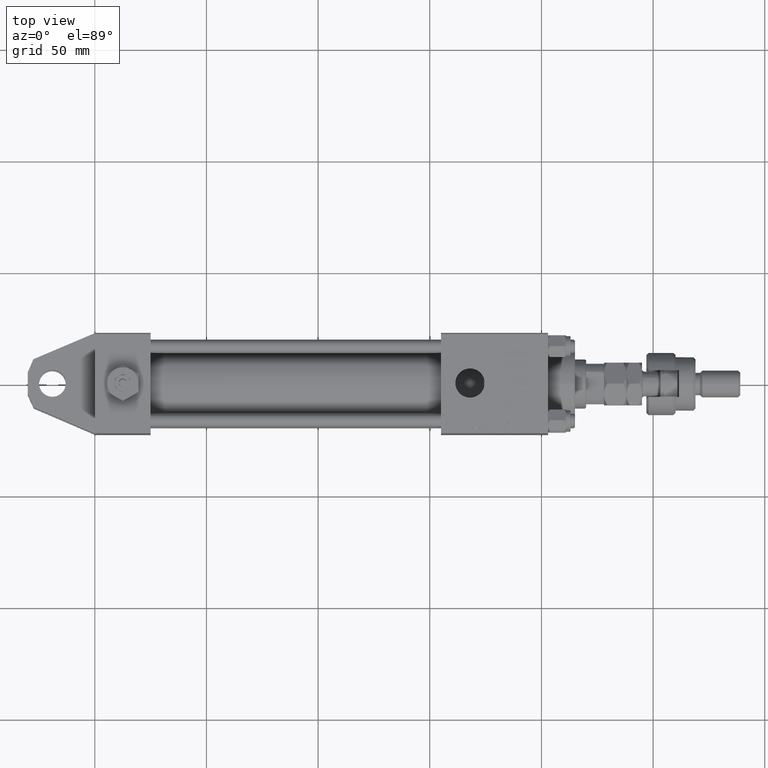
[diagram: clean part render]
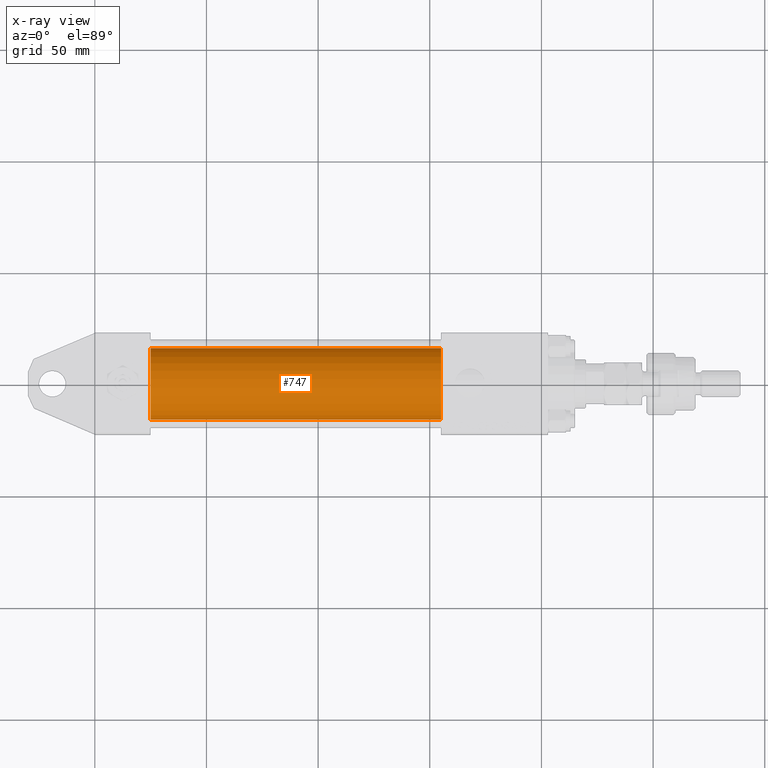
[diagram: x-ray — body ghosted, one internal face saturated and labeled with its STEP entity id]
A machine part, top view, then the same camera in x-ray: the body is ghosted and one INTERNAL B-rep face — a face not visible from any outside direction — is saturated and labeled: STEP entity #747.
In plain terms, the highlighted cylindrical surface (edge-blend (fillet) strip) has radius 16 mm, axis along (-1, -0, 0).
Its self-contained STEP definition (entity closure, byte-faithful):
#747 = ADVANCED_FACE ( 'NONE', ( #49355 ), #43848, .F. ) ;
#1369 = EDGE_CURVE ( 'NONE', #4192, #42297, #32931, .T. ) ;
#4192 = VERTEX_POINT ( 'NONE', #40521 ) ;
#6098 = DIRECTION ( 'NONE',  ( 0.000000000000000000, 0.000000000000000000, 1.000000000000000000 ) ) ;
#6796 = EDGE_CURVE ( 'NONE', #42798, #4192, #16309, .T. ) ;
#7087 = EDGE_LOOP ( 'NONE', ( #28536, #47417, #24578, #47312 ) ) ;
#8490 = CARTESIAN_POINT ( 'NONE',  ( 155.0000000000000000, -3.469446951953614189E-15, 0.000000000000000000 ) ) ;
#8756 = DIRECTION ( 'NONE',  ( 1.000000000000000000, 0.000000000000000000, 0.000000000000000000 ) ) ;
#9394 = DIRECTION ( 'NONE',  ( -1.000000000000000000, -0.000000000000000000, -0.000000000000000000 ) ) ;
#15419 = VERTEX_POINT ( 'NONE', #39794 ) ;
#16309 = CIRCLE ( 'NONE', #52394, 16.00000000000000000 ) ;
#17105 = DIRECTION ( 'NONE',  ( 0.000000000000000000, 0.000000000000000000, -1.000000000000000000 ) ) ;
#22890 = LINE ( 'NONE', #23162, #24712 ) ;
#23162 = CARTESIAN_POINT ( 'NONE',  ( 155.0000000000000000, -3.469446951953614189E-15, 16.00000000000000000 ) ) ;
#23449 = CARTESIAN_POINT ( 'NONE',  ( 155.0000000000000000, -3.469446951953614189E-15, 0.000000000000000000 ) ) ;
#24578 = ORIENTED_EDGE ( 'NONE', *, *, #35713, .F. ) ;
#24712 = VECTOR ( 'NONE', #9394, 1000.000000000000000 ) ;
#25318 = DIRECTION ( 'NONE',  ( 0.000000000000000000, 0.000000000000000000, -1.000000000000000000 ) ) ;
#26203 = DIRECTION ( 'NONE',  ( 1.000000000000000000, 0.000000000000000000, 0.000000000000000000 ) ) ;
#28536 = ORIENTED_EDGE ( 'NONE', *, *, #6796, .T. ) ;
#30041 = CARTESIAN_POINT ( 'NONE',  ( 25.00000000000000000, -3.469446951953614189E-15, 0.000000000000000000 ) ) ;
#32931 = LINE ( 'NONE', #33471, #39960 ) ;
#33471 = CARTESIAN_POINT ( 'NONE',  ( 155.0000000000000000, -1.510012073317849255E-15, -16.00000000000000000 ) ) ;
#35713 = EDGE_CURVE ( 'NONE', #15419, #42297, #50798, .T. ) ;
#37718 = CARTESIAN_POINT ( 'NONE',  ( 25.00000000000000000, -1.510012073317849255E-15, -16.00000000000000000 ) ) ;
#39072 = CARTESIAN_POINT ( 'NONE',  ( 155.0000000000000000, -3.469446951953614189E-15, 16.00000000000000000 ) ) ;
#39794 = CARTESIAN_POINT ( 'NONE',  ( 25.00000000000000000, -3.469446951953614189E-15, 16.00000000000000000 ) ) ;
#39960 = VECTOR ( 'NONE', #49225, 1000.000000000000000 ) ;
#40521 = CARTESIAN_POINT ( 'NONE',  ( 155.0000000000000000, -1.510012073317849255E-15, -16.00000000000000000 ) ) ;
#42297 = VERTEX_POINT ( 'NONE', #37718 ) ;
#42798 = VERTEX_POINT ( 'NONE', #39072 ) ;
#43848 = CYLINDRICAL_SURFACE ( 'NONE', #47874, 16.00000000000000000 ) ;
#47254 = AXIS2_PLACEMENT_3D ( 'NONE', #30041, #26203, #17105 ) ;
#47312 = ORIENTED_EDGE ( 'NONE', *, *, #52017, .F. ) ;
#47417 = ORIENTED_EDGE ( 'NONE', *, *, #1369, .T. ) ;
#47874 = AXIS2_PLACEMENT_3D ( 'NONE', #23449, #48820, #6098 ) ;
#48820 = DIRECTION ( 'NONE',  ( -1.000000000000000000, -0.000000000000000000, -0.000000000000000000 ) ) ;
#49225 = DIRECTION ( 'NONE',  ( -1.000000000000000000, -0.000000000000000000, -0.000000000000000000 ) ) ;
#49355 = FACE_OUTER_BOUND ( 'NONE', #7087, .T. ) ;
#50798 = CIRCLE ( 'NONE', #47254, 16.00000000000000000 ) ;
#52017 = EDGE_CURVE ( 'NONE', #42798, #15419, #22890, .T. ) ;
#52394 = AXIS2_PLACEMENT_3D ( 'NONE', #8490, #8756, #25318 ) ;